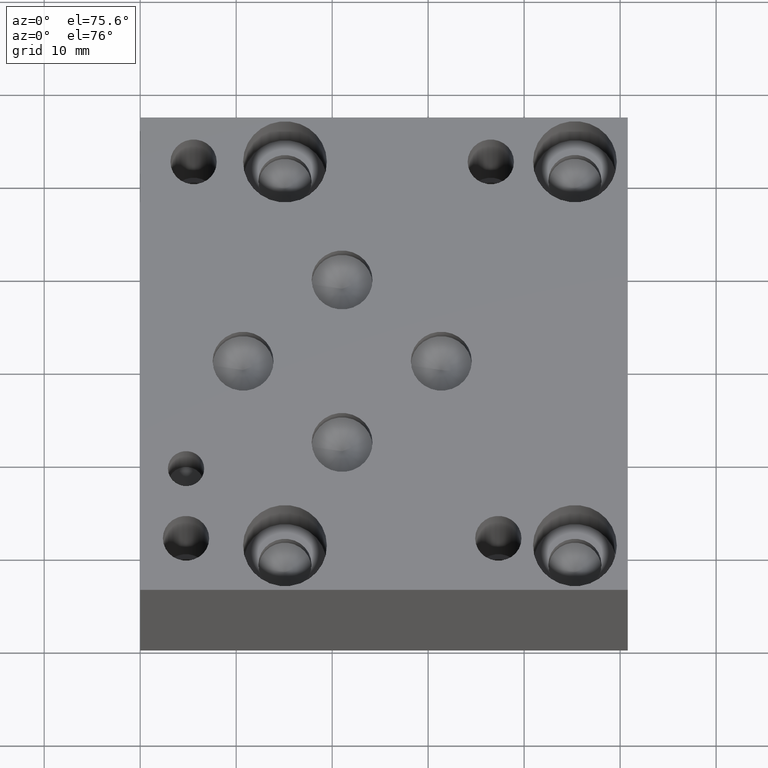
[diagram: clean part render]
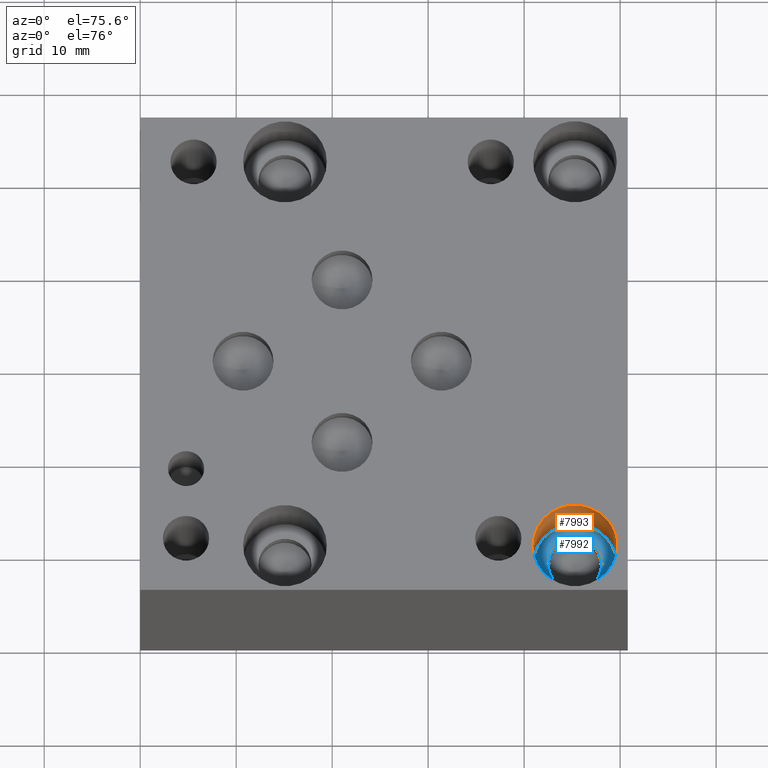
[diagram: same view with the hole feature highlighted: cylindrical wall and planar end face, labeled with their STEP entity ids]
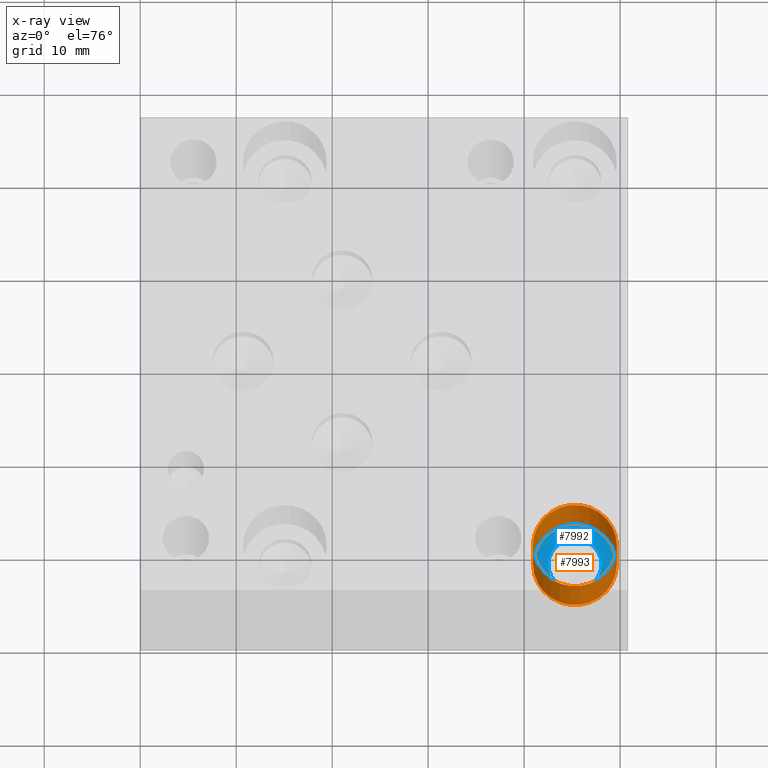
[diagram: x-ray of the same camera — body ghosted, the hole faces saturated]
A machine part, auxiliary view. The highlighted faces form one hole feature of diameter 8.7376 mm: the cylindrical wall (entity #7993, orange) and its adjacent planar end face (entity #7992, blue) — they share a circular edge in the B-rep.
The next image is the same camera in x-ray (body ghosted, the hole faces saturated) — the bore reads through the body.
Wall:
#95=CIRCLE('',#8389,4.3688);
#96=CIRCLE('',#8390,4.3688);
#98=CIRCLE('',#8393,4.3688);
#99=CIRCLE('',#8394,4.3688);
#171=CYLINDRICAL_SURFACE('',#8392,4.3688);
#872=FACE_OUTER_BOUND('',#1316,.T.);
#1316=EDGE_LOOP('',(#6818,#6819,#6820,#6821,#6822,#6823));
#2152=LINE('',#13333,#2959);
#2959=VECTOR('',#9961,4.3688);
#3675=VERTEX_POINT('',#13322);
#3676=VERTEX_POINT('',#13323);
#3678=VERTEX_POINT('',#13329);
#3679=VERTEX_POINT('',#13330);
#4749=EDGE_CURVE('',#3675,#3676,#95,.T.);
#4750=EDGE_CURVE('',#3676,#3675,#96,.T.);
#4752=EDGE_CURVE('',#3678,#3679,#98,.T.);
#4753=EDGE_CURVE('',#3679,#3678,#99,.T.);
#4754=EDGE_CURVE('',#3679,#3676,#2152,.T.);
#6818=ORIENTED_EDGE('',*,*,#4752,.F.);
#6819=ORIENTED_EDGE('',*,*,#4753,.F.);
#6820=ORIENTED_EDGE('',*,*,#4754,.T.);
#6821=ORIENTED_EDGE('',*,*,#4749,.F.);
#6822=ORIENTED_EDGE('',*,*,#4750,.F.);
#6823=ORIENTED_EDGE('',*,*,#4754,.F.);
#7993=ADVANCED_FACE('',(#872),#171,.F.);
#8389=AXIS2_PLACEMENT_3D('',#13324,#9949,#9950);
#8390=AXIS2_PLACEMENT_3D('',#13325,#9951,#9952);
#8392=AXIS2_PLACEMENT_3D('',#13328,#9955,#9956);
#8393=AXIS2_PLACEMENT_3D('',#13331,#9957,#9958);
#8394=AXIS2_PLACEMENT_3D('',#13332,#9959,#9960);
#9949=DIRECTION('center_axis',(0.,0.,1.));
#9950=DIRECTION('ref_axis',(1.,0.,0.));
#9951=DIRECTION('center_axis',(0.,0.,1.));
#9952=DIRECTION('ref_axis',(1.,0.,0.));
#9955=DIRECTION('center_axis',(0.,0.,1.));
#9956=DIRECTION('ref_axis',(1.,0.,0.));
#9957=DIRECTION('center_axis',(0.,0.,-1.));
#9958=DIRECTION('ref_axis',(1.,0.,0.));
#9959=DIRECTION('center_axis',(0.,0.,-1.));
#9960=DIRECTION('ref_axis',(1.,0.,0.));
#9961=DIRECTION('',(0.,0.,-1.));
#13322=CARTESIAN_POINT('',(49.657,4.7498,17.4752));
#13323=CARTESIAN_POINT('',(40.9194,4.7498,17.4752));
#13324=CARTESIAN_POINT('Origin',(45.2882,4.7498,17.4752));
#13325=CARTESIAN_POINT('Origin',(45.2882,4.7498,17.4752));
#13328=CARTESIAN_POINT('Origin',(45.2882,4.7498,21.4376));
#13329=CARTESIAN_POINT('',(49.657,4.7498,25.4));
#13330=CARTESIAN_POINT('',(40.9194,4.7498,25.4));
#13331=CARTESIAN_POINT('Origin',(45.2882,4.7498,25.4));
#13332=CARTESIAN_POINT('Origin',(45.2882,4.7498,25.4));
#13333=CARTESIAN_POINT('',(40.9194,4.7498,21.4376));
End face:
#95=CIRCLE('',#8389,4.3688);
#96=CIRCLE('',#8390,4.3688);
#97=CIRCLE('',#8391,2.7686);
#225=FACE_BOUND('',#1315,.T.);
#871=FACE_OUTER_BOUND('',#1314,.T.);
#1314=EDGE_LOOP('',(#6815,#6816));
#1315=EDGE_LOOP('',(#6817));
#3675=VERTEX_POINT('',#13322);
#3676=VERTEX_POINT('',#13323);
#3677=VERTEX_POINT('',#13326);
#4749=EDGE_CURVE('',#3675,#3676,#95,.T.);
#4750=EDGE_CURVE('',#3676,#3675,#96,.T.);
#4751=EDGE_CURVE('',#3677,#3677,#97,.T.);
#6815=ORIENTED_EDGE('',*,*,#4749,.T.);
#6816=ORIENTED_EDGE('',*,*,#4750,.T.);
#6817=ORIENTED_EDGE('',*,*,#4751,.F.);
#7290=PLANE('',#8388);
#7992=ADVANCED_FACE('',(#871,#225),#7290,.T.);
#8388=AXIS2_PLACEMENT_3D('',#13321,#9947,#9948);
#8389=AXIS2_PLACEMENT_3D('',#13324,#9949,#9950);
#8390=AXIS2_PLACEMENT_3D('',#13325,#9951,#9952);
#8391=AXIS2_PLACEMENT_3D('',#13327,#9953,#9954);
#9947=DIRECTION('center_axis',(0.,0.,1.));
#9948=DIRECTION('ref_axis',(1.,0.,0.));
#9949=DIRECTION('center_axis',(0.,0.,1.));
#9950=DIRECTION('ref_axis',(1.,0.,0.));
#9951=DIRECTION('center_axis',(0.,0.,1.));
#9952=DIRECTION('ref_axis',(1.,0.,0.));
#9953=DIRECTION('center_axis',(0.,0.,1.));
#9954=DIRECTION('ref_axis',(1.,0.,0.));
#13321=CARTESIAN_POINT('Origin',(45.2882,4.7498,17.4752));
#13322=CARTESIAN_POINT('',(49.657,4.7498,17.4752));
#13323=CARTESIAN_POINT('',(40.9194,4.7498,17.4752));
#13324=CARTESIAN_POINT('Origin',(45.2882,4.7498,17.4752));
#13325=CARTESIAN_POINT('Origin',(45.2882,4.7498,17.4752));
#13326=CARTESIAN_POINT('',(42.5196,4.7498,17.4752));
#13327=CARTESIAN_POINT('Origin',(45.2882,4.7498,17.4752));